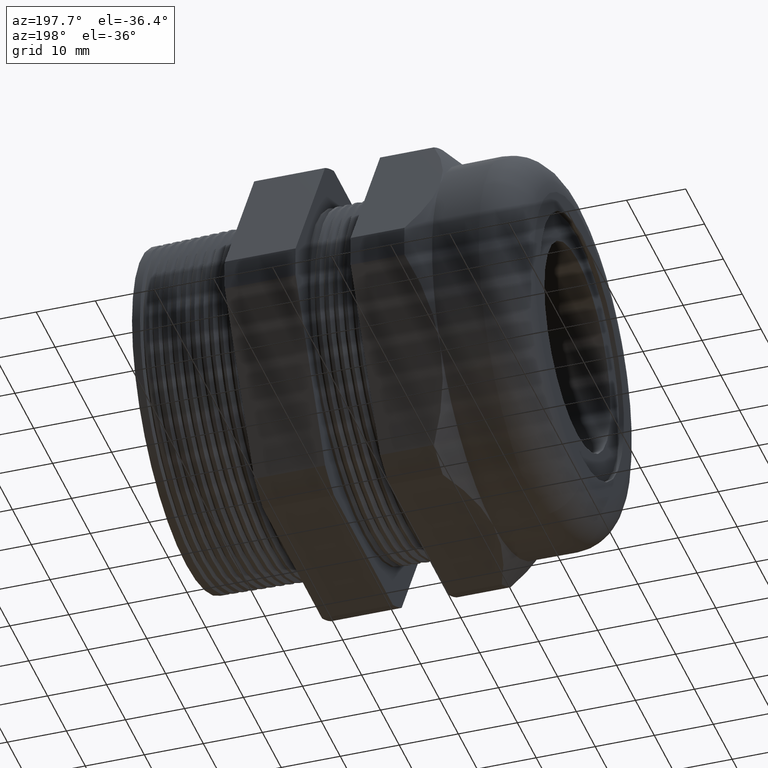
[diagram: clean part render]
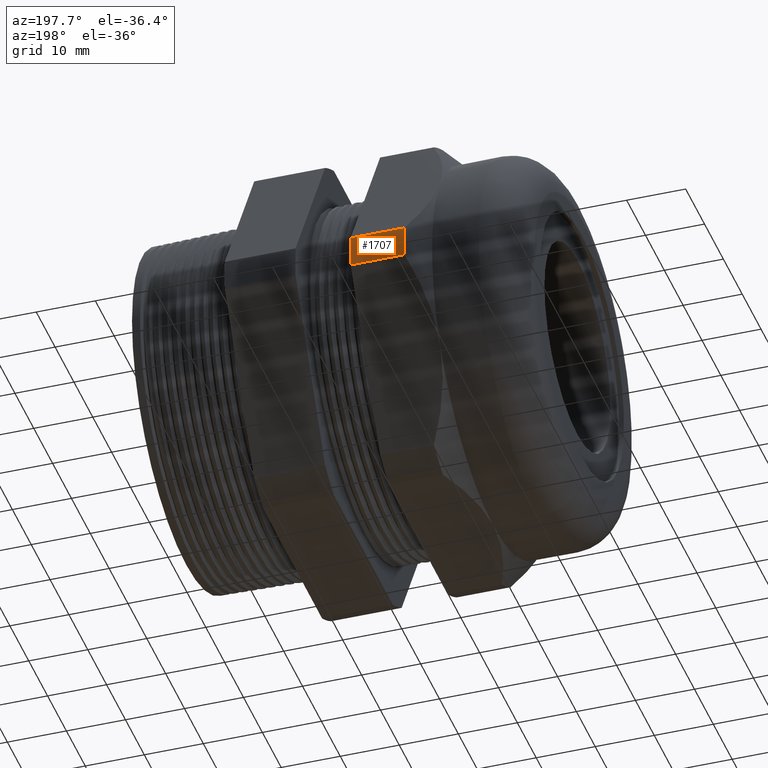
[diagram: same view with one face highlighted and labeled with its STEP entity id]
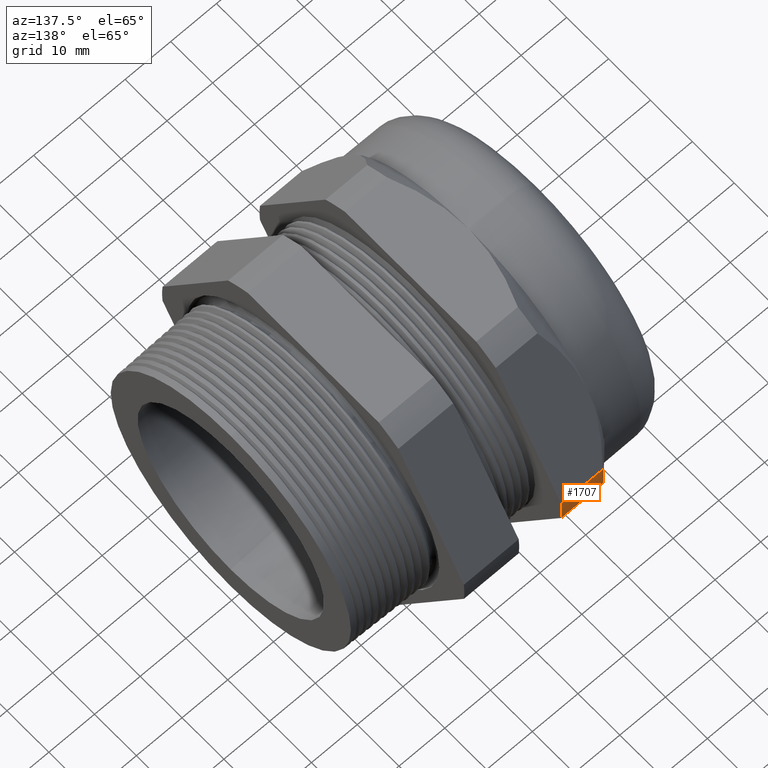
[diagram: same view with one face highlighted and labeled with its STEP entity id]
A machine part, auxiliary view. The second image highlights one B-rep face of the part: STEP entity #1707.
A second angle (auxiliary view) of the same face is appended — the face is thin or edge-on in the first view.
In plain terms, the highlighted cylindrical surface (partial cylindrical patch) has radius 36.0883 mm, axis along (-1, 0, 0).
Its self-contained STEP definition (entity closure, byte-faithful):
#13 = VERTEX_POINT ( 'NONE', #251 ) ;
#251 = CARTESIAN_POINT ( 'NONE',  ( -1.508650000000000000, 1.416843767287496500, 0.1059546086707621500 ) ) ;
#1648 = ORIENTED_EDGE ( 'NONE', *, *, #1697, .T. ) ;
#1649 = EDGE_LOOP ( 'NONE', ( #1648, #4329, #4131, #4104 ) ) ;
#1690 = VERTEX_POINT ( 'NONE', #3472 ) ;
#1691 = VERTEX_POINT ( 'NONE', #3471 ) ;
#1697 = EDGE_CURVE ( 'NONE', #1690, #1691, #3463, .T. ) ;
#1707 = ADVANCED_FACE ( 'NONE', ( #3458 ), #3457, .T. ) ;
#3457 = CYLINDRICAL_SURFACE ( 'NONE', #3518, 1.420800000000000100 ) ;
#3458 = FACE_OUTER_BOUND ( 'NONE', #1649, .T. ) ;
#3460 = DIRECTION ( 'NONE',  ( -1.000000000000000000, 0.0000000000000000000, 0.0000000000000000000 ) ) ;
#3461 = VECTOR ( 'NONE', #3460, 39.37007874015748100 ) ;
#3462 = CARTESIAN_POINT ( 'NONE',  ( 0.4000000000000000800, 1.416843767287496500, -0.1059546086707612900 ) ) ;
#3463 = LINE ( 'NONE', #3462, #3461 ) ;
#3471 = CARTESIAN_POINT ( 'NONE',  ( -1.508650000000000000, 1.416843767287496500, -0.1059546086707612900 ) ) ;
#3472 = CARTESIAN_POINT ( 'NONE',  ( -1.149449999999999600, 1.416843767287496500, -0.1059546086707612900 ) ) ;
#3501 = DIRECTION ( 'NONE',  ( 0.0000000000000000000, 0.0000000000000000000, 1.000000000000000000 ) ) ;
#3502 = DIRECTION ( 'NONE',  ( -1.000000000000000000, 0.0000000000000000000, 0.0000000000000000000 ) ) ;
#3503 = CARTESIAN_POINT ( 'NONE',  ( 0.4000000000000000800, 0.0000000000000000000, 0.0000000000000000000 ) ) ;
#3518 = AXIS2_PLACEMENT_3D ( 'NONE', #3503, #3502, #3501 ) ;
#3588 = CARTESIAN_POINT ( 'NONE',  ( -1.149449999999999400, 1.416843767287496500, 0.1059546086707622400 ) ) ;
#3589 = DIRECTION ( 'NONE',  ( 0.0000000000000000000, 0.0000000000000000000, -1.000000000000000000 ) ) ;
#3590 = DIRECTION ( 'NONE',  ( 1.000000000000000000, 0.0000000000000000000, 0.0000000000000000000 ) ) ;
#3591 = CARTESIAN_POINT ( 'NONE',  ( -1.149449999999999400, 0.0000000000000000000, 0.0000000000000000000 ) ) ;
#3592 = AXIS2_PLACEMENT_3D ( 'NONE', #3591, #3590, #3589 ) ;
#3593 = CIRCLE ( 'NONE', #3592, 1.420800000000000100 ) ;
#3594 = DIRECTION ( 'NONE',  ( -1.000000000000000000, 0.0000000000000000000, 0.0000000000000000000 ) ) ;
#3595 = VECTOR ( 'NONE', #3594, 39.37007874015748100 ) ;
#3596 = CARTESIAN_POINT ( 'NONE',  ( 0.4000000000000000800, 1.416843767287496500, 0.1059546086707622400 ) ) ;
#3597 = LINE ( 'NONE', #3596, #3595 ) ;
#3969 = DIRECTION ( 'NONE',  ( 0.0000000000000000000, 0.0000000000000000000, -1.000000000000000000 ) ) ;
#3970 = DIRECTION ( 'NONE',  ( 1.000000000000000000, 0.0000000000000000000, 0.0000000000000000000 ) ) ;
#3971 = CARTESIAN_POINT ( 'NONE',  ( -1.508650000000000000, 0.0000000000000000000, 0.0000000000000000000 ) ) ;
#3972 = AXIS2_PLACEMENT_3D ( 'NONE', #3971, #3970, #3969 ) ;
#3973 = CIRCLE ( 'NONE', #3972, 1.420800000000000100 ) ;
#4104 = ORIENTED_EDGE ( 'NONE', *, *, #4124, .F. ) ;
#4123 = EDGE_CURVE ( 'NONE', #4126, #13, #3597, .T. ) ;
#4124 = EDGE_CURVE ( 'NONE', #1690, #4126, #3593, .T. ) ;
#4126 = VERTEX_POINT ( 'NONE', #3588 ) ;
#4131 = ORIENTED_EDGE ( 'NONE', *, *, #4123, .F. ) ;
#4327 = EDGE_CURVE ( 'NONE', #1691, #13, #3973, .T. ) ;
#4329 = ORIENTED_EDGE ( 'NONE', *, *, #4327, .T. ) ;